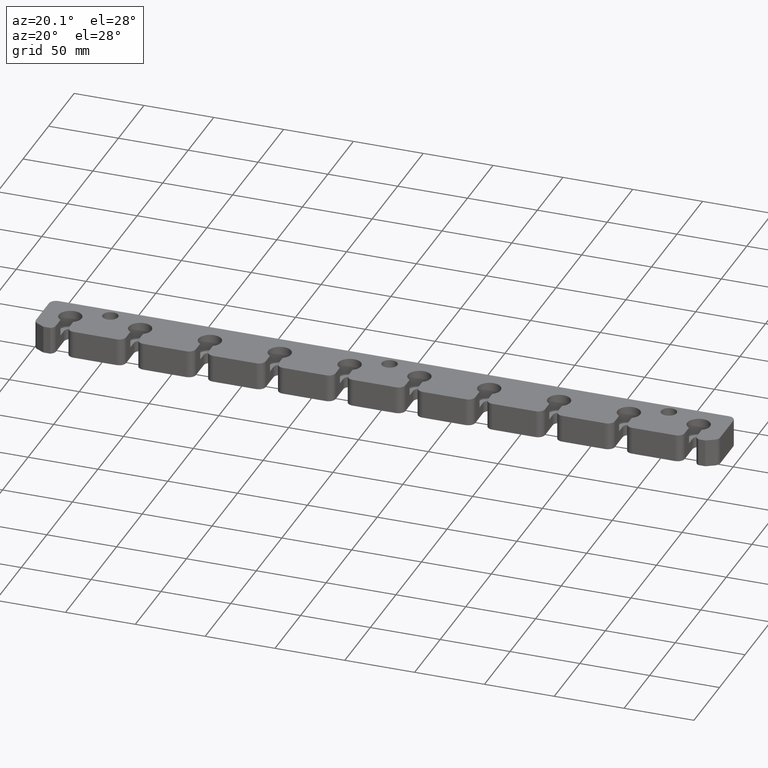
[diagram: clean part render]
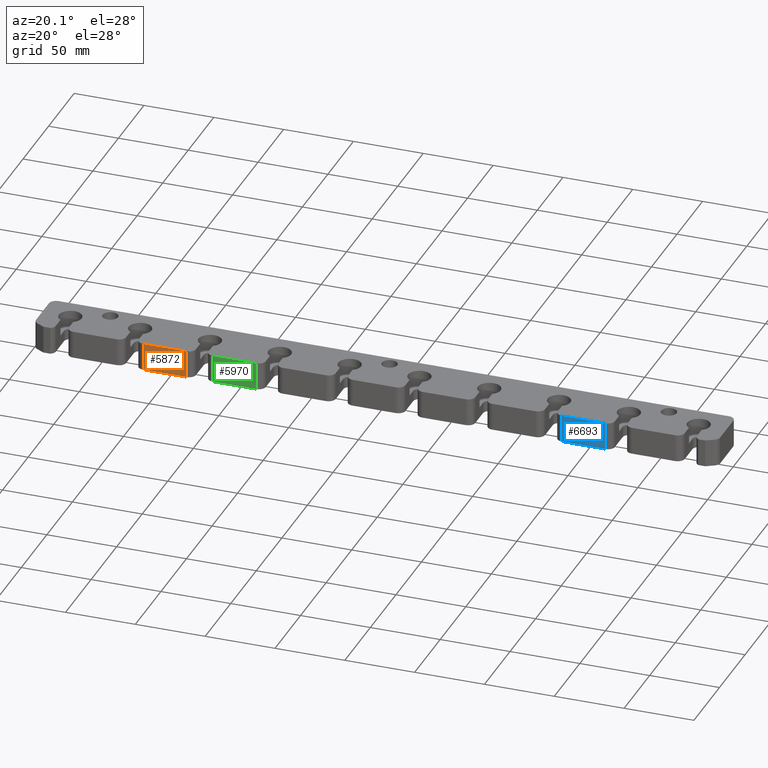
[diagram: same view with three faces highlighted in distinct colors, each labeled with its STEP entity id]
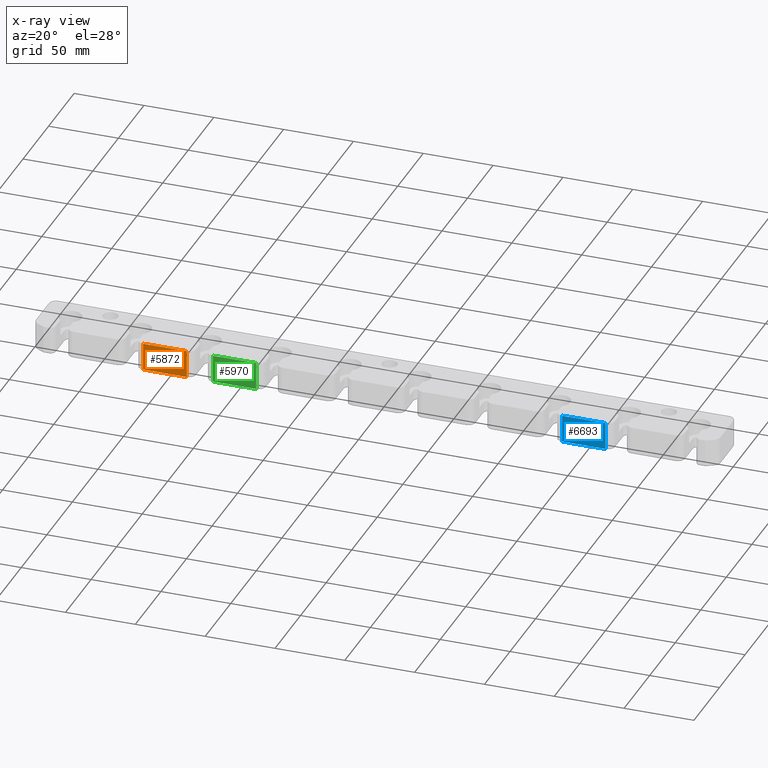
[diagram: x-ray of the same camera — body ghosted, the three highlighted faces saturated]
A machine part, auxiliary view with three faces highlighted in distinct colors.
The next image is the same camera in x-ray (body ghosted, the three faces saturated) — at least one of them is partly hidden behind the body in this view.
Their STEP definitions:

[orange] entity #5872 — the highlighted planar face has unit normal (0, 1, 0).
#165 = DIRECTION ( 'NONE',  ( 0.000000000000000000, 0.000000000000000000, -1.000000000000000000 ) ) ;
#379 = VECTOR ( 'NONE', #433, 1000.000000000000000 ) ;
#433 = DIRECTION ( 'NONE',  ( 1.000000000000000000, 0.000000000000000000, 0.000000000000000000 ) ) ;
#765 = CARTESIAN_POINT ( 'NONE',  ( -165.4999999999999716, -19.00000000000000000, 0.1732050807568760731 ) ) ;
#1337 = VERTEX_POINT ( 'NONE', #6668 ) ;
#1646 = LINE ( 'NONE', #5245, #379 ) ;
#1682 = EDGE_CURVE ( 'NONE', #6123, #1337, #1646, .T. ) ;
#2030 = ORIENTED_EDGE ( 'NONE', *, *, #3732, .T. ) ;
#2038 = LINE ( 'NONE', #3404, #4398 ) ;
#2091 = ORIENTED_EDGE ( 'NONE', *, *, #3543, .T. ) ;
#2102 = CARTESIAN_POINT ( 'NONE',  ( -170.4999999999999716, -19.00000000000000000, 19.82679491924317361 ) ) ;
#2409 = DIRECTION ( 'NONE',  ( 0.000000000000000000, 1.000000000000000000, 0.000000000000000000 ) ) ;
#2429 = VECTOR ( 'NONE', #165, 1000.000000000000000 ) ;
#2467 = ORIENTED_EDGE ( 'NONE', *, *, #5837, .T. ) ;
#2631 = VECTOR ( 'NONE', #5814, 1000.000000000000000 ) ;
#3129 = EDGE_LOOP ( 'NONE', ( #2467, #3628, #2030, #2091 ) ) ;
#3330 = LINE ( 'NONE', #3408, #2429 ) ;
#3404 = CARTESIAN_POINT ( 'NONE',  ( -134.4999999999999716, -19.00000000000000000, 20.00000000000000000 ) ) ;
#3408 = CARTESIAN_POINT ( 'NONE',  ( -165.4999999999999716, -19.00000000000000000, 0.000000000000000000 ) ) ;
#3521 = CARTESIAN_POINT ( 'NONE',  ( -170.4999999999999716, -19.00000000000000000, 20.00000000000000000 ) ) ;
#3543 = EDGE_CURVE ( 'NONE', #5711, #5656, #4063, .T. ) ;
#3628 = ORIENTED_EDGE ( 'NONE', *, *, #1682, .T. ) ;
#3732 = EDGE_CURVE ( 'NONE', #1337, #5711, #2038, .T. ) ;
#4063 = LINE ( 'NONE', #2102, #2631 ) ;
#4398 = VECTOR ( 'NONE', #5008, 1000.000000000000000 ) ;
#4990 = CARTESIAN_POINT ( 'NONE',  ( -134.4999999999999716, -19.00000000000000000, 19.82679491924317361 ) ) ;
#5008 = DIRECTION ( 'NONE',  ( -0.000000000000000000, -0.000000000000000000, 1.000000000000000000 ) ) ;
#5245 = CARTESIAN_POINT ( 'NONE',  ( -134.5000000000000000, -19.00000000000000000, 0.1732050807568760731 ) ) ;
#5371 = CARTESIAN_POINT ( 'NONE',  ( -165.4999999999999716, -19.00000000000000000, 19.82679491924317361 ) ) ;
#5656 = VERTEX_POINT ( 'NONE', #5371 ) ;
#5711 = VERTEX_POINT ( 'NONE', #4990 ) ;
#5814 = DIRECTION ( 'NONE',  ( -1.000000000000000000, 0.000000000000000000, 0.000000000000000000 ) ) ;
#5837 = EDGE_CURVE ( 'NONE', #5656, #6123, #3330, .T. ) ;
#5872 = ADVANCED_FACE ( 'NONE', ( #6498 ), #6636, .F. ) ;
#6123 = VERTEX_POINT ( 'NONE', #765 ) ;
#6131 = DIRECTION ( 'NONE',  ( 0.000000000000000000, -0.000000000000000000, 1.000000000000000000 ) ) ;
#6375 = AXIS2_PLACEMENT_3D ( 'NONE', #3521, #2409, #6131 ) ;
#6498 = FACE_OUTER_BOUND ( 'NONE', #3129, .T. ) ;
#6636 = PLANE ( 'NONE',  #6375 ) ;
#6668 = CARTESIAN_POINT ( 'NONE',  ( -134.4999999999999716, -19.00000000000000000, 0.1732050807568760731 ) ) ;

[blue] entity #6693 — the highlighted planar face has unit normal (0, 1, 0).
#122 = LINE ( 'NONE', #382, #6264 ) ;
#354 = EDGE_CURVE ( 'NONE', #5784, #1828, #6593, .T. ) ;
#382 = CARTESIAN_POINT ( 'NONE',  ( 134.5000000000000000, -19.00000000000000000, 0.000000000000000000 ) ) ;
#629 = VERTEX_POINT ( 'NONE', #2953 ) ;
#711 = CARTESIAN_POINT ( 'NONE',  ( 134.5000000000000000, -19.00000000000000000, 0.1732050807568760731 ) ) ;
#745 = ORIENTED_EDGE ( 'NONE', *, *, #895, .T. ) ;
#876 = CARTESIAN_POINT ( 'NONE',  ( 129.5000000000000000, -19.00000000000000000, 20.00000000000000000 ) ) ;
#895 = EDGE_CURVE ( 'NONE', #629, #5784, #122, .T. ) ;
#1198 = DIRECTION ( 'NONE',  ( -1.000000000000000000, 0.000000000000000000, 0.000000000000000000 ) ) ;
#1819 = VECTOR ( 'NONE', #2575, 1000.000000000000000 ) ;
#1828 = VERTEX_POINT ( 'NONE', #5337 ) ;
#1894 = EDGE_CURVE ( 'NONE', #6152, #629, #3665, .T. ) ;
#1902 = AXIS2_PLACEMENT_3D ( 'NONE', #876, #4201, #5743 ) ;
#2238 = VECTOR ( 'NONE', #1198, 1000.000000000000000 ) ;
#2575 = DIRECTION ( 'NONE',  ( -0.000000000000000000, -0.000000000000000000, 1.000000000000000000 ) ) ;
#2827 = CARTESIAN_POINT ( 'NONE',  ( 129.5000000000000000, -19.00000000000000000, 19.82679491924317361 ) ) ;
#2953 = CARTESIAN_POINT ( 'NONE',  ( 134.5000000000000000, -19.00000000000000000, 19.82679491924317361 ) ) ;
#3067 = CARTESIAN_POINT ( 'NONE',  ( 165.5000000000000000, -19.00000000000000000, 20.00000000000000000 ) ) ;
#3133 = DIRECTION ( 'NONE',  ( 1.000000000000000000, 0.000000000000000000, 0.000000000000000000 ) ) ;
#3311 = ORIENTED_EDGE ( 'NONE', *, *, #1894, .T. ) ;
#3528 = ORIENTED_EDGE ( 'NONE', *, *, #6188, .T. ) ;
#3665 = LINE ( 'NONE', #2827, #2238 ) ;
#3829 = EDGE_LOOP ( 'NONE', ( #745, #4660, #3528, #3311 ) ) ;
#4148 = PLANE ( 'NONE',  #1902 ) ;
#4201 = DIRECTION ( 'NONE',  ( 0.000000000000000000, 1.000000000000000000, 0.000000000000000000 ) ) ;
#4606 = LINE ( 'NONE', #3067, #1819 ) ;
#4660 = ORIENTED_EDGE ( 'NONE', *, *, #354, .T. ) ;
#5191 = FACE_OUTER_BOUND ( 'NONE', #3829, .T. ) ;
#5337 = CARTESIAN_POINT ( 'NONE',  ( 165.5000000000000000, -19.00000000000000000, 0.1732050807568760731 ) ) ;
#5634 = CARTESIAN_POINT ( 'NONE',  ( 165.5000000000000000, -19.00000000000000000, 19.82679491924317361 ) ) ;
#5743 = DIRECTION ( 'NONE',  ( 0.000000000000000000, -0.000000000000000000, 1.000000000000000000 ) ) ;
#5783 = DIRECTION ( 'NONE',  ( 0.000000000000000000, 0.000000000000000000, -1.000000000000000000 ) ) ;
#5784 = VERTEX_POINT ( 'NONE', #711 ) ;
#6100 = VECTOR ( 'NONE', #3133, 1000.000000000000000 ) ;
#6152 = VERTEX_POINT ( 'NONE', #5634 ) ;
#6188 = EDGE_CURVE ( 'NONE', #1828, #6152, #4606, .T. ) ;
#6264 = VECTOR ( 'NONE', #5783, 1000.000000000000000 ) ;
#6323 = CARTESIAN_POINT ( 'NONE',  ( 165.5000000000000000, -19.00000000000000000, 0.1732050807568760731 ) ) ;
#6593 = LINE ( 'NONE', #6323, #6100 ) ;
#6693 = ADVANCED_FACE ( 'NONE', ( #5191 ), #4148, .F. ) ;

[green] entity #5970 — the highlighted planar face has unit normal (0, 1, 0).
#96 = CARTESIAN_POINT ( 'NONE',  ( -84.49999999999997158, -19.00000000000000000, 19.82679491924317361 ) ) ;
#111 = VECTOR ( 'NONE', #3883, 1000.000000000000000 ) ;
#130 = DIRECTION ( 'NONE',  ( -0.000000000000000000, -0.000000000000000000, 1.000000000000000000 ) ) ;
#144 = CARTESIAN_POINT ( 'NONE',  ( -120.5000000000000000, -19.00000000000000000, 19.82679491924317361 ) ) ;
#454 = EDGE_CURVE ( 'NONE', #1008, #5859, #4544, .T. ) ;
#496 = EDGE_CURVE ( 'NONE', #6806, #6887, #3438, .T. ) ;
#543 = LINE ( 'NONE', #6836, #1046 ) ;
#655 = CARTESIAN_POINT ( 'NONE',  ( -84.49999999999997158, -19.00000000000000000, 20.00000000000000000 ) ) ;
#1008 = VERTEX_POINT ( 'NONE', #2758 ) ;
#1046 = VECTOR ( 'NONE', #3140, 1000.000000000000000 ) ;
#1191 = PLANE ( 'NONE',  #5662 ) ;
#1224 = FACE_OUTER_BOUND ( 'NONE', #2643, .T. ) ;
#1285 = ORIENTED_EDGE ( 'NONE', *, *, #496, .T. ) ;
#1416 = VECTOR ( 'NONE', #3263, 1000.000000000000000 ) ;
#1907 = CARTESIAN_POINT ( 'NONE',  ( -115.4999999999999858, -19.00000000000000000, 0.1732050807568760731 ) ) ;
#2042 = EDGE_CURVE ( 'NONE', #5859, #6806, #543, .T. ) ;
#2184 = VECTOR ( 'NONE', #130, 1000.000000000000000 ) ;
#2342 = DIRECTION ( 'NONE',  ( 0.000000000000000000, 1.000000000000000000, 0.000000000000000000 ) ) ;
#2643 = EDGE_LOOP ( 'NONE', ( #6127, #5254, #1285, #5392 ) ) ;
#2758 = CARTESIAN_POINT ( 'NONE',  ( -115.4999999999999858, -19.00000000000000000, 19.82679491924317361 ) ) ;
#3140 = DIRECTION ( 'NONE',  ( 1.000000000000000000, 0.000000000000000000, 0.000000000000000000 ) ) ;
#3156 = CARTESIAN_POINT ( 'NONE',  ( -84.49999999999997158, -19.00000000000000000, 0.1732050807568760731 ) ) ;
#3263 = DIRECTION ( 'NONE',  ( 0.000000000000000000, 0.000000000000000000, -1.000000000000000000 ) ) ;
#3438 = LINE ( 'NONE', #655, #2184 ) ;
#3883 = DIRECTION ( 'NONE',  ( -1.000000000000000000, 0.000000000000000000, 0.000000000000000000 ) ) ;
#4544 = LINE ( 'NONE', #5876, #1416 ) ;
#5019 = DIRECTION ( 'NONE',  ( 0.000000000000000000, -0.000000000000000000, 1.000000000000000000 ) ) ;
#5254 = ORIENTED_EDGE ( 'NONE', *, *, #2042, .T. ) ;
#5392 = ORIENTED_EDGE ( 'NONE', *, *, #5928, .T. ) ;
#5501 = CARTESIAN_POINT ( 'NONE',  ( -120.5000000000000000, -19.00000000000000000, 20.00000000000000000 ) ) ;
#5662 = AXIS2_PLACEMENT_3D ( 'NONE', #5501, #2342, #5019 ) ;
#5859 = VERTEX_POINT ( 'NONE', #1907 ) ;
#5876 = CARTESIAN_POINT ( 'NONE',  ( -115.4999999999999858, -19.00000000000000000, 0.000000000000000000 ) ) ;
#5928 = EDGE_CURVE ( 'NONE', #6887, #1008, #6578, .T. ) ;
#5970 = ADVANCED_FACE ( 'NONE', ( #1224 ), #1191, .F. ) ;
#6127 = ORIENTED_EDGE ( 'NONE', *, *, #454, .T. ) ;
#6578 = LINE ( 'NONE', #144, #111 ) ;
#6806 = VERTEX_POINT ( 'NONE', #3156 ) ;
#6836 = CARTESIAN_POINT ( 'NONE',  ( -84.49999999999997158, -19.00000000000000000, 0.1732050807568760731 ) ) ;
#6887 = VERTEX_POINT ( 'NONE', #96 ) ;